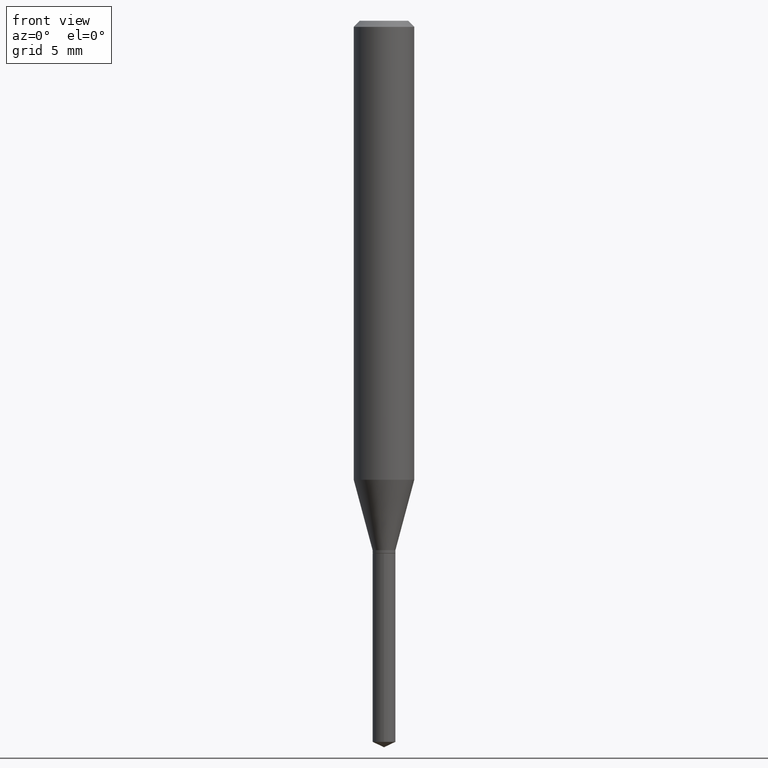
[diagram: clean part render]
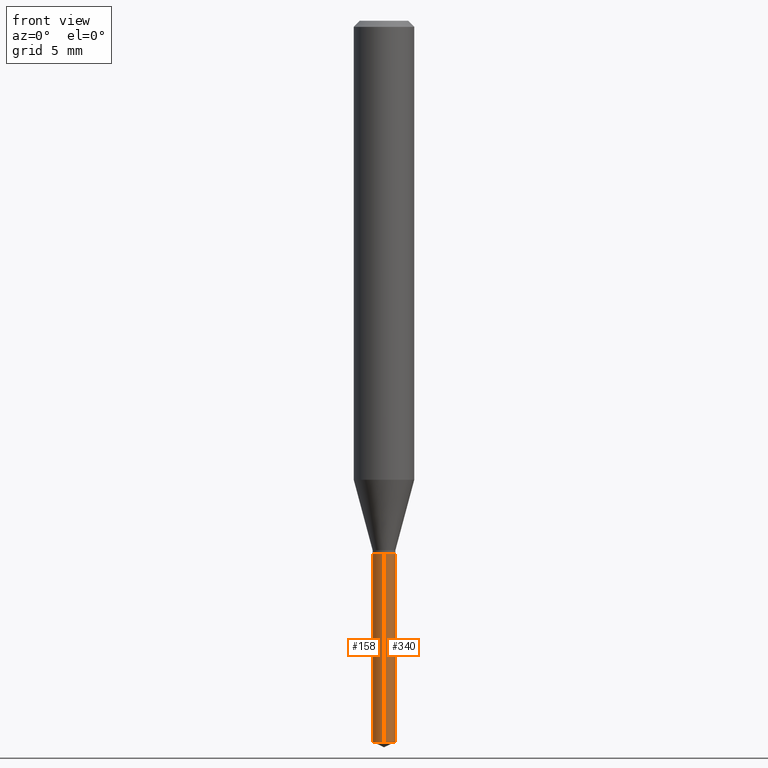
[diagram: same view with one multi-face feature highlighted, each face labeled with its STEP entity id]
A machine part, front view. The highlighted faces form ONE feature: a constant-radius fillet chain: 2 tangent blend faces with common blend radius 0.5994 mm. The faces share edges in the B-rep.
Their STEP definitions:
[1] entity #158 (Cylinder):
#4 = DIRECTION ( 'NONE',  ( -2.445399690415121810E-29, 3.491580316559632610E-15, 1.000000000000000000 ) ) ;
#8 = LINE ( 'NONE', #47, #394 ) ;
#11 = CARTESIAN_POINT ( 'NONE',  ( 3.641264279941484398E-29, -5.198837244231382439E-15, -1.488995139267542012 ) ) ;
#20 = AXIS2_PLACEMENT_3D ( 'NONE', #11, #77, #131 ) ;
#29 = CARTESIAN_POINT ( 'NONE',  ( -1.647979191933689828E-16, -0.02360000000000384360, -1.099999999999999867 ) ) ;
#34 = AXIS2_PLACEMENT_3D ( 'NONE', #462, #48, #357 ) ;
#47 = CARTESIAN_POINT ( 'NONE',  ( 1.676880856394105352E-16, 0.02359999999999615877, -1.100000000000000089 ) ) ;
#48 = DIRECTION ( 'NONE',  ( -2.445399690415121530E-29, 3.491580316559632610E-15, 1.000000000000000000 ) ) ;
#52 = ORIENTED_EDGE ( 'NONE', *, *, #393, .T. ) ;
#55 = ORIENTED_EDGE ( 'NONE', *, *, #237, .F. ) ;
#57 = ORIENTED_EDGE ( 'NONE', *, *, #84, .T. ) ;
#58 = AXIS2_PLACEMENT_3D ( 'NONE', #79, #236, #85 ) ;
#76 = CYLINDRICAL_SURFACE ( 'NONE', #58, 0.02360000000000000292 ) ;
#77 = DIRECTION ( 'NONE',  ( -2.445399690415121530E-29, 3.491580316559632610E-15, 1.000000000000000000 ) ) ;
#79 = CARTESIAN_POINT ( 'NONE',  ( 2.690015686803650369E-29, -3.840629472727460101E-15, -1.100000000000000089 ) ) ;
#84 = EDGE_CURVE ( 'NONE', #259, #410, #434, .T. ) ;
#85 = DIRECTION ( 'NONE',  ( -6.982962677686265133E-15, -1.000000000000000000, 5.787813545898861862E-15 ) ) ;
#97 = VERTEX_POINT ( 'NONE', #457 ) ;
#131 = DIRECTION ( 'NONE',  ( -6.982962677686265133E-15, -1.000000000000000000, 0.000000000000000000 ) ) ;
#158 = ADVANCED_FACE ( 'NONE', ( #422 ), #76, .T. ) ;
#171 = CARTESIAN_POINT ( 'NONE',  ( 1.676880856394200508E-16, 0.02359999999999479875, -1.488995139267542012 ) ) ;
#182 = EDGE_CURVE ( 'NONE', #259, #97, #8, .T. ) ;
#187 = CARTESIAN_POINT ( 'NONE',  ( -1.647979191933594425E-16, -0.02360000000000519668, -1.488995139267542012 ) ) ;
#218 = ORIENTED_EDGE ( 'NONE', *, *, #182, .F. ) ;
#231 = CIRCLE ( 'NONE', #34, 0.02360000000000000292 ) ;
#236 = DIRECTION ( 'NONE',  ( -2.445399690415121530E-29, 3.491580316559632610E-15, 1.000000000000000000 ) ) ;
#237 = EDGE_CURVE ( 'NONE', #97, #488, #231, .T. ) ;
#259 = VERTEX_POINT ( 'NONE', #171 ) ;
#290 = EDGE_LOOP ( 'NONE', ( #218, #57, #52, #55 ) ) ;
#292 = DIRECTION ( 'NONE',  ( -2.445399690415121810E-29, 3.491580316559632610E-15, 1.000000000000000000 ) ) ;
#333 = LINE ( 'NONE', #474, #363 ) ;
#357 = DIRECTION ( 'NONE',  ( -6.982962677686265133E-15, -1.000000000000000000, 5.787813545898861862E-15 ) ) ;
#363 = VECTOR ( 'NONE', #292, 39.37007874015748143 ) ;
#393 = EDGE_CURVE ( 'NONE', #410, #488, #333, .T. ) ;
#394 = VECTOR ( 'NONE', #4, 39.37007874015748143 ) ;
#410 = VERTEX_POINT ( 'NONE', #187 ) ;
#422 = FACE_OUTER_BOUND ( 'NONE', #290, .T. ) ;
#434 = CIRCLE ( 'NONE', #20, 0.02360000000000000292 ) ;
#457 = CARTESIAN_POINT ( 'NONE',  ( 1.676880856394201494E-16, 0.02359999999999616571, -1.100000000000000089 ) ) ;
#462 = CARTESIAN_POINT ( 'NONE',  ( 2.690015686803650369E-29, -3.840629472727460101E-15, -1.100000000000000089 ) ) ;
#474 = CARTESIAN_POINT ( 'NONE',  ( -1.647979191933689828E-16, -0.02360000000000384360, -1.099999999999999867 ) ) ;
#488 = VERTEX_POINT ( 'NONE', #29 ) ;
[2] entity #340 (Cylinder):
#4 = DIRECTION ( 'NONE',  ( -2.445399690415121810E-29, 3.491580316559632610E-15, 1.000000000000000000 ) ) ;
#8 = LINE ( 'NONE', #47, #394 ) ;
#17 = CARTESIAN_POINT ( 'NONE',  ( 3.641264279941484398E-29, -5.198837244231382439E-15, -1.488995139267542012 ) ) ;
#29 = CARTESIAN_POINT ( 'NONE',  ( -1.647979191933689828E-16, -0.02360000000000384360, -1.099999999999999867 ) ) ;
#47 = CARTESIAN_POINT ( 'NONE',  ( 1.676880856394105352E-16, 0.02359999999999615877, -1.100000000000000089 ) ) ;
#87 = ORIENTED_EDGE ( 'NONE', *, *, #393, .F. ) ;
#93 = DIRECTION ( 'NONE',  ( -2.445399690415121530E-29, 3.491580316559632610E-15, 1.000000000000000000 ) ) ;
#97 = VERTEX_POINT ( 'NONE', #457 ) ;
#113 = CIRCLE ( 'NONE', #310, 0.02360000000000000292 ) ;
#128 = AXIS2_PLACEMENT_3D ( 'NONE', #217, #93, #251 ) ;
#132 = DIRECTION ( 'NONE',  ( -2.445399690415121530E-29, 3.491580316559632610E-15, 1.000000000000000000 ) ) ;
#155 = ORIENTED_EDGE ( 'NONE', *, *, #166, .F. ) ;
#166 = EDGE_CURVE ( 'NONE', #488, #97, #209, .T. ) ;
#171 = CARTESIAN_POINT ( 'NONE',  ( 1.676880856394200508E-16, 0.02359999999999479875, -1.488995139267542012 ) ) ;
#182 = EDGE_CURVE ( 'NONE', #259, #97, #8, .T. ) ;
#187 = CARTESIAN_POINT ( 'NONE',  ( -1.647979191933594425E-16, -0.02360000000000519668, -1.488995139267542012 ) ) ;
#209 = CIRCLE ( 'NONE', #249, 0.02360000000000000292 ) ;
#217 = CARTESIAN_POINT ( 'NONE',  ( 2.690015686803650369E-29, -3.840629472727460101E-15, -1.100000000000000089 ) ) ;
#226 = ORIENTED_EDGE ( 'NONE', *, *, #182, .T. ) ;
#240 = DIRECTION ( 'NONE',  ( -2.445399690415121530E-29, 3.491580316559632610E-15, 1.000000000000000000 ) ) ;
#249 = AXIS2_PLACEMENT_3D ( 'NONE', #395, #240, #358 ) ;
#251 = DIRECTION ( 'NONE',  ( -6.982962677686265133E-15, -1.000000000000000000, 5.787813545898861862E-15 ) ) ;
#259 = VERTEX_POINT ( 'NONE', #171 ) ;
#285 = EDGE_CURVE ( 'NONE', #410, #259, #113, .T. ) ;
#292 = DIRECTION ( 'NONE',  ( -2.445399690415121810E-29, 3.491580316559632610E-15, 1.000000000000000000 ) ) ;
#310 = AXIS2_PLACEMENT_3D ( 'NONE', #17, #132, #401 ) ;
#333 = LINE ( 'NONE', #474, #363 ) ;
#340 = ADVANCED_FACE ( 'NONE', ( #411 ), #472, .T. ) ;
#358 = DIRECTION ( 'NONE',  ( -6.982962677686265133E-15, -1.000000000000000000, 5.787813545898861862E-15 ) ) ;
#363 = VECTOR ( 'NONE', #292, 39.37007874015748143 ) ;
#393 = EDGE_CURVE ( 'NONE', #410, #488, #333, .T. ) ;
#394 = VECTOR ( 'NONE', #4, 39.37007874015748143 ) ;
#395 = CARTESIAN_POINT ( 'NONE',  ( 2.690015686803650369E-29, -3.840629472727460101E-15, -1.100000000000000089 ) ) ;
#401 = DIRECTION ( 'NONE',  ( -6.982962677686265133E-15, -1.000000000000000000, 0.000000000000000000 ) ) ;
#402 = ORIENTED_EDGE ( 'NONE', *, *, #285, .T. ) ;
#406 = EDGE_LOOP ( 'NONE', ( #402, #226, #155, #87 ) ) ;
#410 = VERTEX_POINT ( 'NONE', #187 ) ;
#411 = FACE_OUTER_BOUND ( 'NONE', #406, .T. ) ;
#457 = CARTESIAN_POINT ( 'NONE',  ( 1.676880856394201494E-16, 0.02359999999999616571, -1.100000000000000089 ) ) ;
#472 = CYLINDRICAL_SURFACE ( 'NONE', #128, 0.02360000000000000292 ) ;
#474 = CARTESIAN_POINT ( 'NONE',  ( -1.647979191933689828E-16, -0.02360000000000384360, -1.099999999999999867 ) ) ;
#488 = VERTEX_POINT ( 'NONE', #29 ) ;